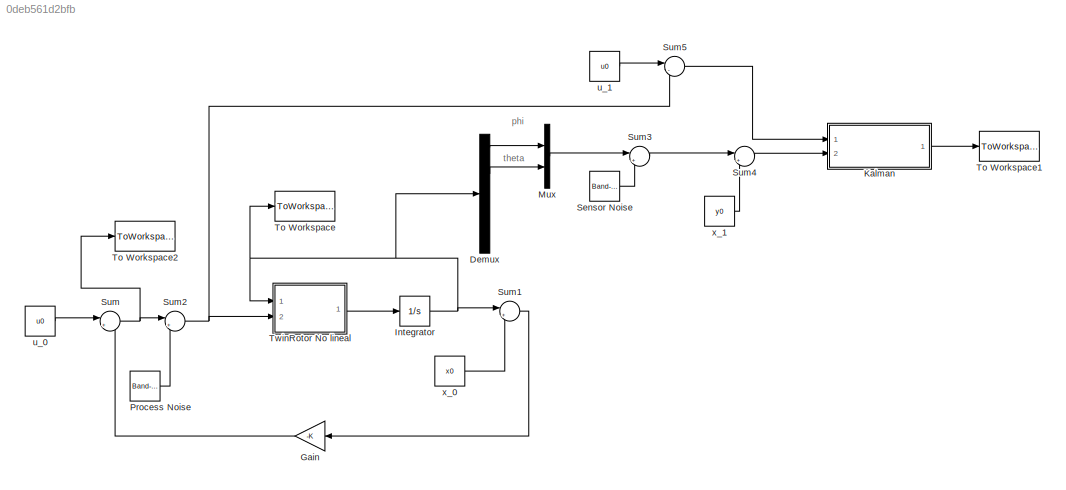
MODEL slx_0deb561d2bfb
KIND model
CONFIG AbsTol = auto
CONFIG EnableMultiTasking = off
CONFIG FixedStep = Ts
CONFIG MaxStep = auto
CONFIG MinStep = auto
CONFIG RelTol = 1e-3
CONFIG SampleTimeConstraint = Unconstrained
CONFIG Solver = FixedStepAuto
CONFIG SolverName = FixedStepAuto
CONFIG StartTime = 0.0
CONFIG StopTime = 50
BLOCK [Demux] Demux
  DisplayOption = bar
  Outputs = 8
  Ports = [1, 8]
BLOCK [Gain] Gain
  Gain = -K
  Multiplication = Matrix(K*u)
  OutDataTypeStr = Inherit: Inherit via internal rule
  ParamDataTypeStr = Inherit: Inherit via internal rule
  SaturateOnIntegerOverflow = off
BLOCK [Integrator] Integrator
  InitialCondition = initial_condition
  Ports = [1, 1]
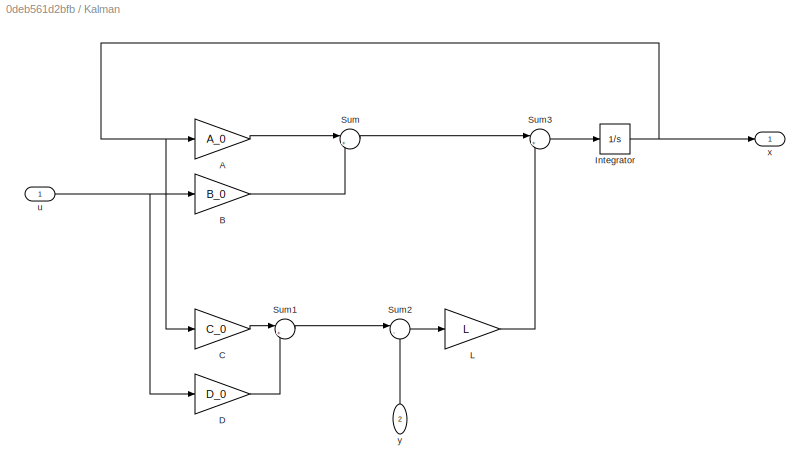
BLOCK [SubSystem] Kalman
  Ports = [2, 1]
  RequestExecContextInheritance = off
  Variant = off
BLOCK [Gain] Kalman/A
  Gain = A_0
  Multiplication = Matrix(K*u)
  OutDataTypeStr = Inherit: Inherit via internal rule
  ParamDataTypeStr = Inherit: Inherit via internal rule
  SaturateOnIntegerOverflow = off
BLOCK [Gain] Kalman/B
  Gain = B_0
  Multiplication = Matrix(K*u)
  OutDataTypeStr = Inherit: Inherit via internal rule
  ParamDataTypeStr = Inherit: Inherit via internal rule
  SaturateOnIntegerOverflow = off
BLOCK [Gain] Kalman/C
  Gain = C_0
  Multiplication = Matrix(K*u)
  OutDataTypeStr = Inherit: Inherit via internal rule
  ParamDataTypeStr = Inherit: Inherit via internal rule
  SaturateOnIntegerOverflow = off
BLOCK [Gain] Kalman/D
  Gain = D_0
  Multiplication = Matrix(K*u)
  OutDataTypeStr = Inherit: Inherit via internal rule
  ParamDataTypeStr = Inherit: Inherit via internal rule
  SaturateOnIntegerOverflow = off
BLOCK [Integrator] Kalman/Integrator
  InitialCondition = k_initial_condition
  Ports = [1, 1]
BLOCK [Gain] Kalman/L
  Gain = L
  Multiplication = Matrix(K*u)
  OutDataTypeStr = Inherit: Inherit via internal rule
  ParamDataTypeStr = Inherit: Inherit via internal rule
  SaturateOnIntegerOverflow = off
BLOCK [Sum] Kalman/Sum
  IconShape = round
  InputSameDT = off
  Inputs = |++
  OutDataTypeStr = Inherit: Inherit via internal rule
  Ports = [2, 1]
  SaturateOnIntegerOverflow = off
BLOCK [Sum] Kalman/Sum1
  IconShape = round
  InputSameDT = off
  Inputs = |++
  OutDataTypeStr = Inherit: Inherit via internal rule
  Ports = [2, 1]
  SaturateOnIntegerOverflow = off
BLOCK [Sum] Kalman/Sum2
  IconShape = round
  InputSameDT = off
  Inputs = |-+
  OutDataTypeStr = Inherit: Inherit via internal rule
  Ports = [2, 1]
  SaturateOnIntegerOverflow = off
BLOCK [Sum] Kalman/Sum3
  IconShape = round
  InputSameDT = off
  Inputs = |++
  OutDataTypeStr = Inherit: Inherit via internal rule
  Ports = [2, 1]
  SaturateOnIntegerOverflow = off
BLOCK [Inport] Kalman/u
  IconDisplay = Port number
BLOCK [Outport] Kalman/x
  IconDisplay = Port number
BLOCK [Inport] Kalman/y
  IconDisplay = Port number
  Port = 2
BLOCK [Mux] Mux
  DisplayOption = bar
  Inputs = 2
  Ports = [2, 1]
BLOCK [Reference] Process Noise  REF=simulink/Sources/Band-Limited
White Noise
  Ports = [0, 1]
  SourceBlock = simulink/Sources/Band-Limited\nWhite Noise
  SourceType = Band-Limited White Noise.
BLOCK [Reference] Sensor Noise   REF=simulink/Sources/Band-Limited
White Noise
  Ports = [0, 1]
  SourceBlock = simulink/Sources/Band-Limited\nWhite Noise
  SourceType = Band-Limited White Noise.
BLOCK [Sum] Sum
  IconShape = round
  InputSameDT = off
  Inputs = |++
  OutDataTypeStr = Inherit: Inherit via internal rule
  Ports = [2, 1]
  SaturateOnIntegerOverflow = off
BLOCK [Sum] Sum1
  IconShape = round
  InputSameDT = off
  Inputs = |+-
  OutDataTypeStr = Inherit: Inherit via internal rule
  Ports = [2, 1]
  SaturateOnIntegerOverflow = off
BLOCK [Sum] Sum2
  IconShape = round
  InputSameDT = off
  Inputs = |++
  OutDataTypeStr = Inherit: Inherit via internal rule
  Ports = [2, 1]
  SaturateOnIntegerOverflow = off
BLOCK [Sum] Sum3
  IconShape = round
  InputSameDT = off
  Inputs = |++
  OutDataTypeStr = Inherit: Inherit via internal rule
  Ports = [2, 1]
  SaturateOnIntegerOverflow = off
BLOCK [Sum] Sum4
  IconShape = round
  InputSameDT = off
  Inputs = |+-
  OutDataTypeStr = Inherit: Inherit via internal rule
  Ports = [2, 1]
  SaturateOnIntegerOverflow = off
BLOCK [Sum] Sum5
  IconShape = round
  InputSameDT = off
  Inputs = |-+
  OutDataTypeStr = Inherit: Inherit via internal rule
  Ports = [2, 1]
  SaturateOnIntegerOverflow = off
BLOCK [ToWorkspace] To Workspace
  FixptAsFi = on
  MaxDataPoints = inf
  Ports = [1]
  SampleTime = -1
  Save2DSignal = 3-D array (concatenate along third dimension)
  SaveFormat = Timeseries
  VariableName = states
BLOCK [ToWorkspace] To Workspace1
  FixptAsFi = on
  MaxDataPoints = inf
  Ports = [1]
  SampleTime = -1
  Save2DSignal = 3-D array (concatenate along third dimension)
  SaveFormat = Timeseries
  VariableName = kstates
BLOCK [ToWorkspace] To Workspace2
  FixptAsFi = on
  MaxDataPoints = inf
  Ports = [1]
  SampleTime = -1
  Save2DSignal = 3-D array (concatenate along third dimension)
  SaveFormat = Timeseries
  VariableName = u
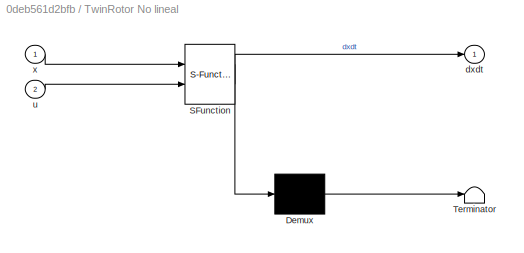
BLOCK [SubSystem] TwinRotor No lineal
  ErrorFcn = Stateflow.Translate.translate
  PermitHierarchicalResolution = ExplicitOnly
  Ports = [2, 1]
  RequestExecContextInheritance = off
  SFBlockType = MATLAB Function
  TreatAsAtomicUnit = on
  Variant = off
BLOCK [Demux] TwinRotor No lineal/ Demux 
  Outputs = 1
  Ports = [1, 1]
BLOCK [S-Function] TwinRotor No lineal/ SFunction 
  EnableBusSupport = on
  FunctionName = sf_sfun
  PortCounts = [2 2]
  Ports = [2, 2]
  SFcnIsStateOwnerBlock = off
  SFunctionDeploymentMode = off
  Tag = Stateflow S-Function sim_v2 2
BLOCK [Terminator] TwinRotor No lineal/ Terminator 
BLOCK [Outport] TwinRotor No lineal/dxdt
  IconDisplay = Port number
BLOCK [Inport] TwinRotor No lineal/u
  IconDisplay = Port number
  Port = 2
BLOCK [Inport] TwinRotor No lineal/x
  IconDisplay = Port number
BLOCK [Constant] u_0
  Value = u0
BLOCK [Constant] u_1
  Value = u0
BLOCK [Constant] x_0
  Value = x0
BLOCK [Constant] x_1
  Value = y0
ANNOTATION (root): phi
ANNOTATION (root): theta
LINE Demux:1 -> Mux:1
LINE Demux:3 -> Mux:2
LINE Gain:1 -> Sum:2
NET Integrator:1 -> Demux:1, Sum1:1, To Workspace:1, TwinRotor No lineal:1
LINE Kalman/A:1 -> Kalman/Sum:1
LINE Kalman/B:1 -> Kalman/Sum:2
LINE Kalman/C:1 -> Kalman/Sum1:1
LINE Kalman/D:1 -> Kalman/Sum1:2
NET Kalman/Integrator:1 -> Kalman/A:1, Kalman/C:1, Kalman/x:1
LINE Kalman/L:1 -> Kalman/Sum3:2
LINE Kalman/Sum1:1 -> Kalman/Sum2:1
LINE Kalman/Sum2:1 -> Kalman/L:1
LINE Kalman/Sum3:1 -> Kalman/Integrator:1
LINE Kalman/Sum:1 -> Kalman/Sum3:1
NET Kalman/u:1 -> Kalman/B:1, Kalman/D:1
LINE Kalman/y:1 -> Kalman/Sum2:2
LINE Kalman:1 -> To Workspace1:1
LINE Mux:1 -> Sum3:1
LINE Process Noise:1 -> Sum2:2
LINE Sensor Noise :1 -> Sum3:2
LINE Sum1:1 -> Gain:1
NET Sum2:1 -> Sum5:2, TwinRotor No lineal:2
LINE Sum3:1 -> Sum4:1
LINE Sum4:1 -> Kalman:2
LINE Sum5:1 -> Kalman:1
NET Sum:1 -> Sum2:1, To Workspace2:1
LINE TwinRotor No lineal:1 -> Integrator:1
LINE u_0:1 -> Sum:1
LINE u_1:1 -> Sum5:1
LINE x_0:1 -> Sum1:2
LINE x_1:1 -> Sum4:2
note: NET lines group one-source signal fan-out (src -> all destinations, sorted); 1:1 wires keep LINE
CHART TwinRotor No lineal states=1 transitions=1
  STATE_LABEL 'eML_blk_kernel()'
  STATE_LABEL 'SCRIPT:\nfunction dxdt = fcn(x, u)\nphi = x(1);d_phi = x(2);theta = x(3);d_theta = x(4);w_p = x(5); w_t = x(6); i_p = x(7); i_t = x(8);\nu_p = u(1); u_t = u(2);\ndxdt = [d_phi;\n(((2231553*cos(phi)^2)/4000000 + 6271303914229987/36028797018963968)*((3*d_phi)/250 - (27043227*cos(phi))/20000000 + (3022461*sin(phi))/2500000 + (1256252657407189*d_theta^2*sin(2*phi))/9007199254740992 + (2921964261275593*w_p*...<+1906ch>'
